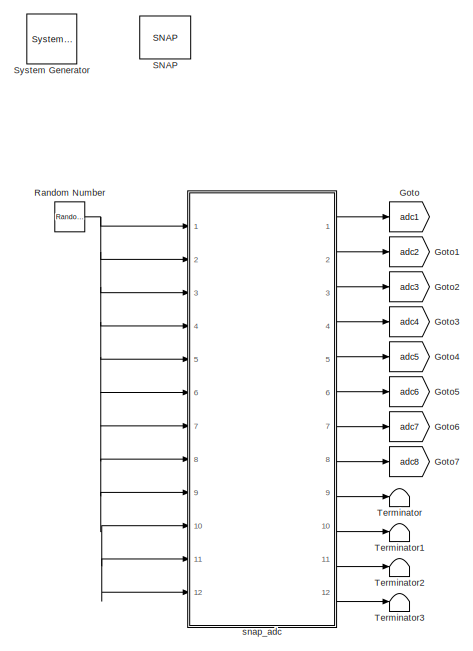
[diagram: root canvas - part 1/2, top left region]
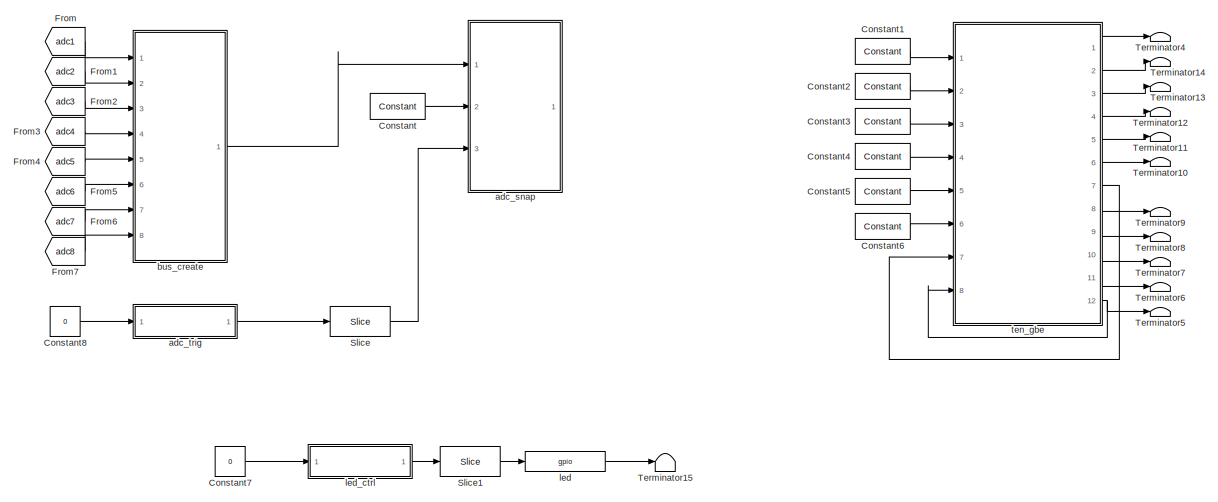
[diagram: root canvas - part 2/2, full width, bottom band]
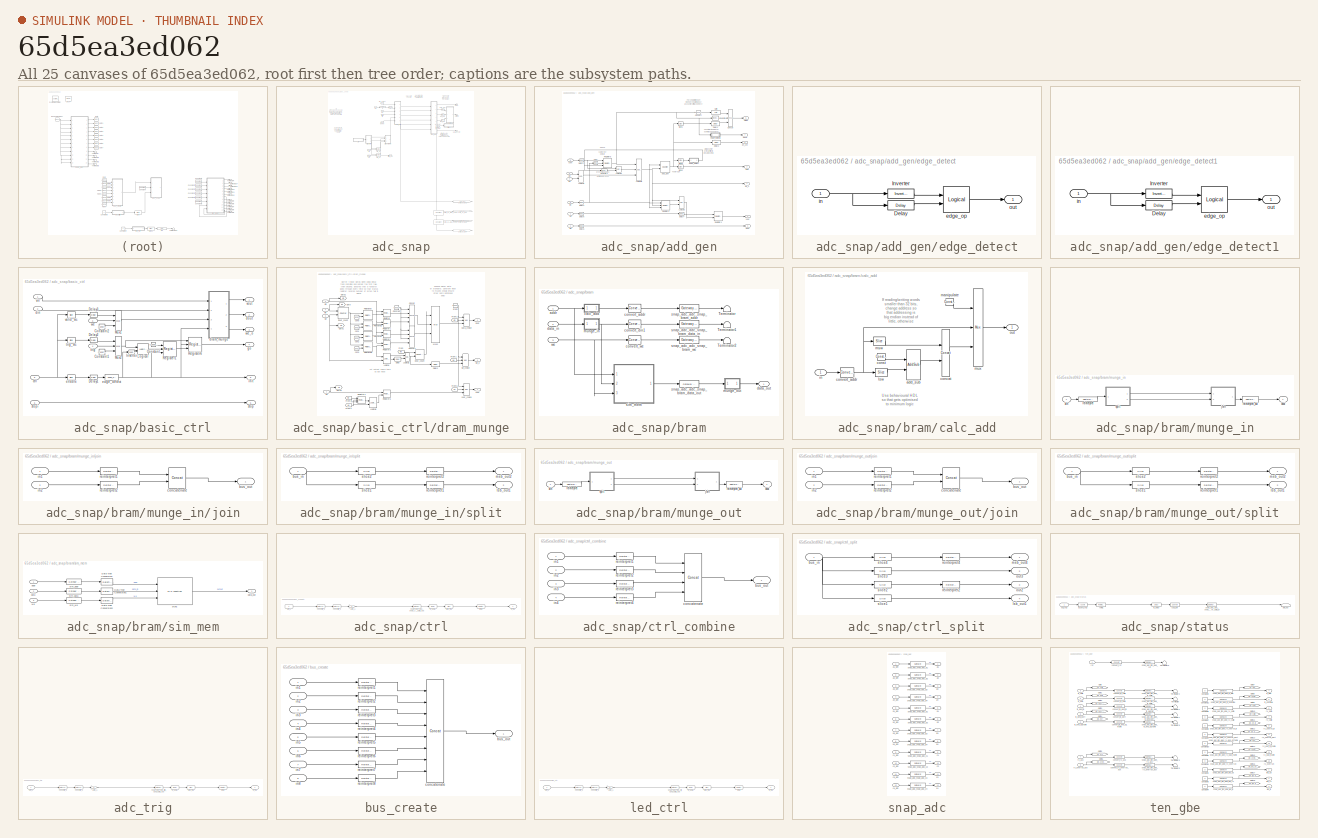
[diagram: thumbnail index - all 25 canvases of the model, root first then tree order]
MODEL slx_65d5ea3ed062
KIND model
CONFIG AbsTol = auto
CONFIG EnableMultiTasking = off
CONFIG FixedStep = auto
CONFIG MaxStep = auto
CONFIG MinStep = auto
CONFIG RelTol = 1e-3
CONFIG SampleTimeConstraint = Unconstrained
CONFIG SolverName = VariableStepDiscrete
CONFIG StartTime = 0.0
CONFIG StopTime = 10.0
BLOCK [Reference]  System Generator  REF=xbsIndex_r4/ System Generator
  AttributesFormatString = System\nGenerator
  Ports = []
  SourceBlock = xbsIndex_r4/ System Generator
  SourceType = Xilinx System Generator Block
  Tag = genX
  UserDataPersistent = on
BLOCK [Reference] Constant  REF=xbsIndex_r4/Constant
  Ports = [0, 1]
  SourceBlock = xbsIndex_r4/Constant
  SourceType = Xilinx Constant Block Block
BLOCK [Reference] Constant1  REF=xbsIndex_r4/Constant
  Ports = [0, 1]
  SourceBlock = xbsIndex_r4/Constant
  SourceType = Xilinx Constant Block Block
BLOCK [Reference] Constant2  REF=xbsIndex_r4/Constant
  Ports = [0, 1]
  SourceBlock = xbsIndex_r4/Constant
  SourceType = Xilinx Constant Block Block
BLOCK [Reference] Constant3  REF=xbsIndex_r4/Constant
  Ports = [0, 1]
  SourceBlock = xbsIndex_r4/Constant
  SourceType = Xilinx Constant Block Block
BLOCK [Reference] Constant4  REF=xbsIndex_r4/Constant
  Ports = [0, 1]
  SourceBlock = xbsIndex_r4/Constant
  SourceType = Xilinx Constant Block Block
BLOCK [Reference] Constant5  REF=xbsIndex_r4/Constant
  Ports = [0, 1]
  SourceBlock = xbsIndex_r4/Constant
  SourceType = Xilinx Constant Block Block
BLOCK [Reference] Constant6  REF=xbsIndex_r4/Constant
  Ports = [0, 1]
  SourceBlock = xbsIndex_r4/Constant
  SourceType = Xilinx Constant Block Block
BLOCK [Constant] Constant7
  SampleTime = -1
  Value = 0
BLOCK [Constant] Constant8
  SampleTime = -1
  Value = 0
BLOCK [From] From
  GotoTag = adc1
BLOCK [From] From1
  GotoTag = adc2
BLOCK [From] From2
  GotoTag = adc3
BLOCK [From] From3
  GotoTag = adc4
BLOCK [From] From4
  GotoTag = adc5
BLOCK [From] From5
  GotoTag = adc6
BLOCK [From] From6
  GotoTag = adc7
BLOCK [From] From7
  GotoTag = adc8
BLOCK [Goto] Goto
  GotoTag = adc1
BLOCK [Goto] Goto1
  GotoTag = adc2
BLOCK [Goto] Goto2
  GotoTag = adc3
BLOCK [Goto] Goto3
  GotoTag = adc4
BLOCK [Goto] Goto4
  GotoTag = adc5
BLOCK [Goto] Goto5
  GotoTag = adc6
BLOCK [Goto] Goto6
  GotoTag = adc7
BLOCK [Goto] Goto7
  GotoTag = adc8
BLOCK [RandomNumber] Random Number
  SampleTime = 0.1
BLOCK [Reference] SNAP  REF=xps_library/Platforms/SNAP  (lib defined in mdl_00b5cec29cd0, mdl_02ab6ecaa3d1, +5 more)
  Ports = []
  SourceBlock = xps_library/Platforms/SNAP
  SourceProductName = CASPER XPS Blockset
  SourceType = xsg core config
  Tag = xps:xsg
BLOCK [Reference] Slice  REF=xbsIndex_r4/Slice
  Ports = [1, 1]
  SourceBlock = xbsIndex_r4/Slice
  SourceType = Xilinx Bit Slice Extractor Block
BLOCK [Reference] Slice1  REF=xbsIndex_r4/Slice
  Ports = [1, 1]
  SourceBlock = xbsIndex_r4/Slice
  SourceType = Xilinx Bit Slice Extractor Block
BLOCK [Terminator] Terminator
BLOCK [Terminator] Terminator1
BLOCK [Terminator] Terminator10
BLOCK [Terminator] Terminator11
BLOCK [Terminator] Terminator12
BLOCK [Terminator] Terminator13
BLOCK [Terminator] Terminator14
BLOCK [Terminator] Terminator15
BLOCK [Terminator] Terminator2
BLOCK [Terminator] Terminator3
BLOCK [Terminator] Terminator4
BLOCK [Terminator] Terminator5
BLOCK [Terminator] Terminator6
BLOCK [Terminator] Terminator7
BLOCK [Terminator] Terminator8
BLOCK [Terminator] Terminator9
BLOCK [SubSystem] adc_snap
  AncestorBlock = casper_library_scopes/snapshot
  AttributesFormatString = 64 wide, 1024 deep\ndebugID: 20520027
  Ports = [3, 1]
  RequestExecContextInheritance = off
  Tag = casper:snapshot
  UserDataPersistent = on
BLOCK [Reference] adc_snap/add_del  REF=xbsIndex_r4/Delay
  Ports = [1, 1]
  SourceBlock = xbsIndex_r4/Delay
  SourceType = Xilinx Delay Block
BLOCK [SubSystem] adc_snap/add_gen
  AncestorBlock = casper_library_scopes/snapshot/add_gen
  Ports = [6, 7]
  RequestExecContextInheritance = off
BLOCK [Reference] adc_snap/add_gen/Concat  REF=xbsIndex_r4/Concat
  Ports = [3, 1]
  SourceBlock = xbsIndex_r4/Concat
  SourceType = Xilinx Bus Concatenator Block
BLOCK [Reference] adc_snap/add_gen/Convert  REF=xbsIndex_r4/Convert
  Ports = [1, 1]
  SourceBlock = xbsIndex_r4/Convert
  SourceType = Xilinx Type Converter Block
BLOCK [Reference] adc_snap/add_gen/Delay  REF=xbsIndex_r4/Delay
  Ports = [1, 1]
  SourceBlock = xbsIndex_r4/Delay
  SourceType = Xilinx Delay Block
BLOCK [Reference] adc_snap/add_gen/Delay1  REF=xbsIndex_r4/Delay
  Ports = [1, 1]
  SourceBlock = xbsIndex_r4/Delay
  SourceType = Xilinx Delay Block
BLOCK [Reference] adc_snap/add_gen/Delay2  REF=xbsIndex_r4/Delay
  Ports = [1, 1]
  SourceBlock = xbsIndex_r4/Delay
  SourceType = Xilinx Delay Block
BLOCK [Reference] adc_snap/add_gen/Delay3  REF=xbsIndex_r4/Delay
  Ports = [1, 1]
  SourceBlock = xbsIndex_r4/Delay
  SourceType = Xilinx Delay Block
BLOCK [Reference] adc_snap/add_gen/Delay4  REF=xbsIndex_r4/Delay
  Ports = [1, 1]
  SourceBlock = xbsIndex_r4/Delay
  SourceType = Xilinx Delay Block
BLOCK [Reference] adc_snap/add_gen/Delay5  REF=xbsIndex_r4/Delay
  Ports = [1, 1]
  SourceBlock = xbsIndex_r4/Delay
  SourceType = Xilinx Delay Block
BLOCK [Reference] adc_snap/add_gen/Delay6  REF=xbsIndex_r4/Delay
  Ports = [1, 1]
  SourceBlock = xbsIndex_r4/Delay
  SourceType = Xilinx Delay Block
BLOCK [Reference] adc_snap/add_gen/Delay7  REF=xbsIndex_r4/Delay
  Ports = [1, 1]
  SourceBlock = xbsIndex_r4/Delay
  SourceType = Xilinx Delay Block
BLOCK [Reference] adc_snap/add_gen/Inverter  REF=xbsIndex_r4/Inverter
  Ports = [1, 1]
  SourceBlock = xbsIndex_r4/Inverter
  SourceType = Xilinx Inverter Block
BLOCK [Reference] adc_snap/add_gen/Inverter1  REF=xbsIndex_r4/Inverter
  Ports = [1, 1]
  SourceBlock = xbsIndex_r4/Inverter
  SourceType = Xilinx Inverter Block
BLOCK [Reference] adc_snap/add_gen/Logical1  REF=xbsIndex_r4/Logical
  Ports = [2, 1]
  SourceBlock = xbsIndex_r4/Logical
  SourceType = Xilinx Logical Block Block
BLOCK [Reference] adc_snap/add_gen/Logical2  REF=xbsIndex_r4/Logical
  Ports = [2, 1]
  SourceBlock = xbsIndex_r4/Logical
  SourceType = Xilinx Logical Block Block
BLOCK [Reference] adc_snap/add_gen/Logical4  REF=xbsIndex_r4/Logical
  Ports = [2, 1]
  SourceBlock = xbsIndex_r4/Logical
  SourceType = Xilinx Logical Block Block
BLOCK [Reference] adc_snap/add_gen/Logical6  REF=xbsIndex_r4/Logical
  Ports = [3, 1]
  SourceBlock = xbsIndex_r4/Logical
  SourceType = Xilinx Logical Block Block
BLOCK [Reference] adc_snap/add_gen/Register3  REF=xbsIndex_r4/Register
  Ports = [3, 1]
  SourceBlock = xbsIndex_r4/Register
  SourceType = Xilinx Register Block
BLOCK [Reference] adc_snap/add_gen/Register4  REF=xbsIndex_r4/Register
  Ports = [2, 1]
  SourceBlock = xbsIndex_r4/Register
  SourceType = Xilinx Register Block
BLOCK [Reference] adc_snap/add_gen/Register5  REF=xbsIndex_r4/Register
  Ports = [3, 1]
  SourceBlock = xbsIndex_r4/Register
  SourceType = Xilinx Register Block
BLOCK [Reference] adc_snap/add_gen/Shift  REF=xbsIndex_r4/Shift
  Ports = [1, 1]
  SourceBlock = xbsIndex_r4/Shift
  SourceType = Xilinx Binary Shift Operator Block
BLOCK [Outport] adc_snap/add_gen/add
  Port = 2
  VectorParamsAs1DForOutWhenUnconnected = off
BLOCK [Reference] adc_snap/add_gen/add_gen  REF=xbsIndex_r4/Counter
  Ports = [2, 1]
  SourceBlock = xbsIndex_r4/Counter
  SourceType = Xilinx Counter Block
BLOCK [Inport] adc_snap/add_gen/cont
  Port = 5
BLOCK [Inport] adc_snap/add_gen/din
  Port = 2
BLOCK [Outport] adc_snap/add_gen/done
  Port = 7
  VectorParamsAs1DForOutWhenUnconnected = off
BLOCK [Outport] adc_snap/add_gen/dout
  Port = 3
  VectorParamsAs1DForOutWhenUnconnected = off
BLOCK [SubSystem] adc_snap/add_gen/edge_detect
  AncestorBlock = casper_library_misc/edge_detect
  AttributesFormatString = both edges\nactive high
  Ports = [1, 1]
  RequestExecContextInheritance = off
  UserDataPersistent = on
BLOCK [Reference] adc_snap/add_gen/edge_detect/Delay  REF=xbsIndex_r4/Delay
  Ports = [1, 1]
  SourceBlock = xbsIndex_r4/Delay
  SourceType = Xilinx Delay Block
BLOCK [Reference] adc_snap/add_gen/edge_detect/Inverter  REF=xbsIndex_r4/Inverter
  Ports = [1, 1]
  SourceBlock = xbsIndex_r4/Inverter
  SourceType = Xilinx Inverter Block
BLOCK [Reference] adc_snap/add_gen/edge_detect/edge_op  REF=xbsIndex_r4/Logical
  Ports = [2, 1]
  SourceBlock = xbsIndex_r4/Logical
  SourceType = Xilinx Logical Block Block
BLOCK [Inport] adc_snap/add_gen/edge_detect/in
BLOCK [Outport] adc_snap/add_gen/edge_detect/out
  VectorParamsAs1DForOutWhenUnconnected = off
BLOCK [SubSystem] adc_snap/add_gen/edge_detect1
  AncestorBlock = casper_library_scopes/snapshot/add_gen/edge_detect
  AttributesFormatString = both edges\nactive high
  Ports = [1, 1]
  RequestExecContextInheritance = off
  UserDataPersistent = on
BLOCK [Reference] adc_snap/add_gen/edge_detect1/Delay  REF=xbsIndex_r4/Delay
  Ports = [1, 1]
  SourceBlock = xbsIndex_r4/Delay
  SourceType = Xilinx Delay Block
BLOCK [Reference] adc_snap/add_gen/edge_detect1/Inverter  REF=xbsIndex_r4/Inverter
  Ports = [1, 1]
  SourceBlock = xbsIndex_r4/Inverter
  SourceType = Xilinx Inverter Block
BLOCK [Reference] adc_snap/add_gen/edge_detect1/edge_op  REF=xbsIndex_r4/Logical
  Ports = [2, 1]
  SourceBlock = xbsIndex_r4/Logical
  SourceType = Xilinx Logical Block Block
BLOCK [Inport] adc_snap/add_gen/edge_detect1/in
BLOCK [Outport] adc_snap/add_gen/edge_detect1/out
  VectorParamsAs1DForOutWhenUnconnected = off
BLOCK [Outport] adc_snap/add_gen/en_cnt
  Port = 6
  VectorParamsAs1DForOutWhenUnconnected = off
BLOCK [Inport] adc_snap/add_gen/go
  Port = 4
BLOCK [Inport] adc_snap/add_gen/init
  Port = 6
BLOCK [Reference] adc_snap/add_gen/slice1  REF=xbsIndex_r4/Slice
  Ports = [1, 1]
  SourceBlock = xbsIndex_r4/Slice
  SourceType = Xilinx Bit Slice Extractor Block
BLOCK [Reference] adc_snap/add_gen/slice2  REF=xbsIndex_r4/Slice
  Ports = [1, 1]
  SourceBlock = xbsIndex_r4/Slice
  SourceType = Xilinx Bit Slice Extractor Block
BLOCK [Reference] adc_snap/add_gen/slice3  REF=xbsIndex_r4/Slice
  Ports = [1, 1]
  SourceBlock = xbsIndex_r4/Slice
  SourceType = Xilinx Bit Slice Extractor Block
BLOCK [Outport] adc_snap/add_gen/status
  Port = 5
  VectorParamsAs1DForOutWhenUnconnected = off
BLOCK [Inport] adc_snap/add_gen/vin
BLOCK [Outport] adc_snap/add_gen/vout
  VectorParamsAs1DForOutWhenUnconnected = off
BLOCK [Inport] adc_snap/add_gen/we
  Port = 3
BLOCK [Outport] adc_snap/add_gen/we_o
  Port = 4
  VectorParamsAs1DForOutWhenUnconnected = off
BLOCK [Reference] adc_snap/arm  REF=xbsIndex_r4/Constant
  Ports = [0, 1]
  SourceBlock = xbsIndex_r4/Constant
  SourceType = Xilinx Constant Block Block
BLOCK [Reference] adc_snap/arm_or  REF=xbsIndex_r4/Logical
  Ports = [2, 1]
  SourceBlock = xbsIndex_r4/Logical
  SourceType = Xilinx Logical Block Block
BLOCK [Outport] adc_snap/arm_out
  VectorParamsAs1DForOutWhenUnconnected = off
BLOCK [SubSystem] adc_snap/basic_ctrl
  AncestorBlock = casper_library_scopes/snapshot/basic_ctrl
  Ports = [6, 6]
  RequestExecContextInheritance = off
BLOCK [Reference] adc_snap/basic_ctrl/Constant  REF=xbsIndex_r4/Constant
  Ports = [0, 1]
  SourceBlock = xbsIndex_r4/Constant
  SourceType = Xilinx Constant Block Block
BLOCK [Reference] adc_snap/basic_ctrl/Constant1  REF=xbsIndex_r4/Constant
  Ports = [0, 1]
  SourceBlock = xbsIndex_r4/Constant
  SourceType = Xilinx Constant Block Block
BLOCK [Reference] adc_snap/basic_ctrl/Constant2  REF=xbsIndex_r4/Constant
  Ports = [0, 1]
  SourceBlock = xbsIndex_r4/Constant
  SourceType = Xilinx Constant Block Block
BLOCK [Reference] adc_snap/basic_ctrl/Delay1  REF=xbsIndex_r4/Delay
  Ports = [1, 1]
  SourceBlock = xbsIndex_r4/Delay
  SourceType = Xilinx Delay Block
BLOCK [Reference] adc_snap/basic_ctrl/Delay2  REF=xbsIndex_r4/Delay
  Ports = [1, 1]
  SourceBlock = xbsIndex_r4/Delay
  SourceType = Xilinx Delay Block
BLOCK [Reference] adc_snap/basic_ctrl/Delay3  REF=xbsIndex_r4/Delay
  Ports = [1, 1]
  SourceBlock = xbsIndex_r4/Delay
  SourceType = Xilinx Delay Block
BLOCK [Reference] adc_snap/basic_ctrl/Inverter  REF=xbsIndex_r4/Inverter
  Ports = [1, 1]
  SourceBlock = xbsIndex_r4/Inverter
  SourceType = Xilinx Inverter Block
BLOCK [Reference] adc_snap/basic_ctrl/Logical  REF=xbsIndex_r4/Logical
  Ports = [2, 1]
  SourceBlock = xbsIndex_r4/Logical
  SourceType = Xilinx Logical Block Block
BLOCK [Reference] adc_snap/basic_ctrl/Mux1  REF=xbsIndex_r4/Mux
  Ports = [3, 1]
  SourceBlock = xbsIndex_r4/Mux
  SourceType = Xilinx Bus Multiplexer Block
BLOCK [Reference] adc_snap/basic_ctrl/Mux2  REF=xbsIndex_r4/Mux
  Ports = [3, 1]
  SourceBlock = xbsIndex_r4/Mux
  SourceType = Xilinx Bus Multiplexer Block
BLOCK [Reference] adc_snap/basic_ctrl/Register1  REF=xbsIndex_r4/Register
  Ports = [3, 1]
  SourceBlock = xbsIndex_r4/Register
  SourceType = Xilinx Register Block
BLOCK [Reference] adc_snap/basic_ctrl/Register6  REF=xbsIndex_r4/Register
  Ports = [3, 1]
  SourceBlock = xbsIndex_r4/Register
  SourceType = Xilinx Register Block
BLOCK [Inport] adc_snap/basic_ctrl/ctrl
  Port = 5
BLOCK [Inport] adc_snap/basic_ctrl/din
  Port = 2
BLOCK [Outport] adc_snap/basic_ctrl/dout
  Port = 2
  VectorParamsAs1DForOutWhenUnconnected = off
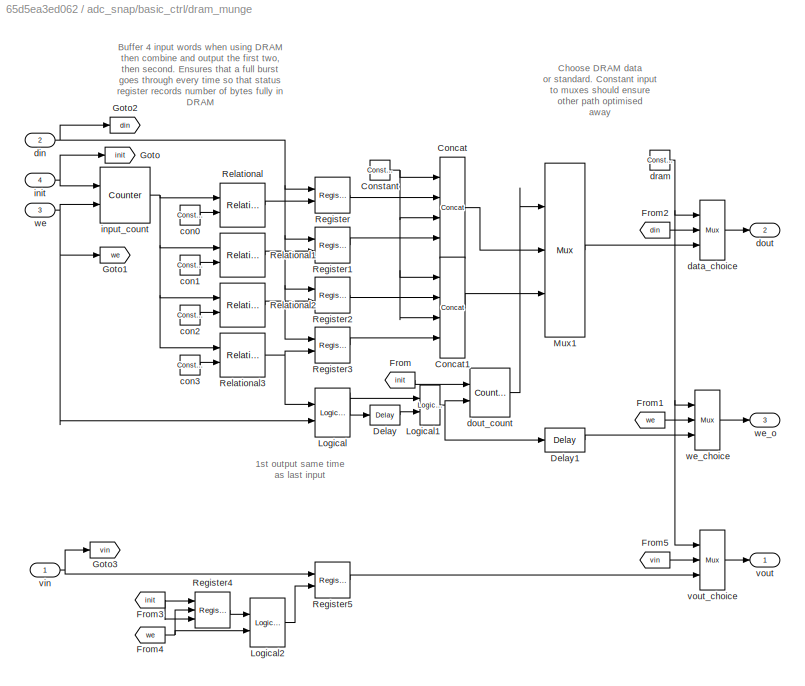
BLOCK [SubSystem] adc_snap/basic_ctrl/dram_munge
  Ports = [4, 3]
  RequestExecContextInheritance = off
BLOCK [Reference] adc_snap/basic_ctrl/dram_munge/Concat  REF=xbsIndex_r4/Concat
  Ports = [4, 1]
  SourceBlock = xbsIndex_r4/Concat
  SourceType = Xilinx Bus Concatenator Block
BLOCK [Reference] adc_snap/basic_ctrl/dram_munge/Concat1  REF=xbsIndex_r4/Concat
  Ports = [4, 1]
  SourceBlock = xbsIndex_r4/Concat
  SourceType = Xilinx Bus Concatenator Block
BLOCK [Reference] adc_snap/basic_ctrl/dram_munge/Constant  REF=xbsIndex_r4/Constant
  Ports = [0, 1]
  SourceBlock = xbsIndex_r4/Constant
  SourceType = Xilinx Constant Block Block
BLOCK [Reference] adc_snap/basic_ctrl/dram_munge/Delay  REF=xbsIndex_r4/Delay
  Ports = [1, 1]
  SourceBlock = xbsIndex_r4/Delay
  SourceType = Xilinx Delay Block
BLOCK [Reference] adc_snap/basic_ctrl/dram_munge/Delay1  REF=xbsIndex_r4/Delay
  Ports = [1, 1]
  SourceBlock = xbsIndex_r4/Delay
  SourceType = Xilinx Delay Block
BLOCK [From] adc_snap/basic_ctrl/dram_munge/From
  CloseFcn = tagdialog Close
  GotoTag = init
BLOCK [From] adc_snap/basic_ctrl/dram_munge/From1
  CloseFcn = tagdialog Close
  GotoTag = we
BLOCK [From] adc_snap/basic_ctrl/dram_munge/From2
  CloseFcn = tagdialog Close
  GotoTag = din
BLOCK [From] adc_snap/basic_ctrl/dram_munge/From3
  CloseFcn = tagdialog Close
  GotoTag = init
BLOCK [From] adc_snap/basic_ctrl/dram_munge/From4
  CloseFcn = tagdialog Close
  GotoTag = we
BLOCK [From] adc_snap/basic_ctrl/dram_munge/From5
  CloseFcn = tagdialog Close
  GotoTag = vin
BLOCK [Goto] adc_snap/basic_ctrl/dram_munge/Goto
  GotoTag = init
BLOCK [Goto] adc_snap/basic_ctrl/dram_munge/Goto1
  GotoTag = we
BLOCK [Goto] adc_snap/basic_ctrl/dram_munge/Goto2
  GotoTag = din
BLOCK [Goto] adc_snap/basic_ctrl/dram_munge/Goto3
  GotoTag = vin
BLOCK [Reference] adc_snap/basic_ctrl/dram_munge/Logical  REF=xbsIndex_r4/Logical
  Ports = [2, 1]
  SourceBlock = xbsIndex_r4/Logical
  SourceType = Xilinx Logical Block Block
BLOCK [Reference] adc_snap/basic_ctrl/dram_munge/Logical1  REF=xbsIndex_r4/Logical
  Ports = [2, 1]
  SourceBlock = xbsIndex_r4/Logical
  SourceType = Xilinx Logical Block Block
BLOCK [Reference] adc_snap/basic_ctrl/dram_munge/Logical2  REF=xbsIndex_r4/Logical
  Ports = [2, 1]
  SourceBlock = xbsIndex_r4/Logical
  SourceType = Xilinx Logical Block Block
BLOCK [Reference] adc_snap/basic_ctrl/dram_munge/Mux1  REF=xbsIndex_r4/Mux
  Ports = [3, 1]
  SourceBlock = xbsIndex_r4/Mux
  SourceType = Xilinx Bus Multiplexer Block
BLOCK [Reference] adc_snap/basic_ctrl/dram_munge/Register  REF=xbsIndex_r4/Register
  Ports = [2, 1]
  SourceBlock = xbsIndex_r4/Register
  SourceType = Xilinx Register Block
BLOCK [Reference] adc_snap/basic_ctrl/dram_munge/Register1  REF=xbsIndex_r4/Register
  Ports = [2, 1]
  SourceBlock = xbsIndex_r4/Register
  SourceType = Xilinx Register Block
BLOCK [Reference] adc_snap/basic_ctrl/dram_munge/Register2  REF=xbsIndex_r4/Register
  Ports = [2, 1]
  SourceBlock = xbsIndex_r4/Register
  SourceType = Xilinx Register Block
BLOCK [Reference] adc_snap/basic_ctrl/dram_munge/Register3  REF=xbsIndex_r4/Register
  Ports = [2, 1]
  SourceBlock = xbsIndex_r4/Register
  SourceType = Xilinx Register Block
BLOCK [Reference] adc_snap/basic_ctrl/dram_munge/Register4  REF=xbsIndex_r4/Register
  Ports = [3, 1]
  SourceBlock = xbsIndex_r4/Register
  SourceType = Xilinx Register Block
BLOCK [Reference] adc_snap/basic_ctrl/dram_munge/Register5  REF=xbsIndex_r4/Register
  Ports = [2, 1]
  SourceBlock = xbsIndex_r4/Register
  SourceType = Xilinx Register Block
BLOCK [Reference] adc_snap/basic_ctrl/dram_munge/Relational  REF=xbsIndex_r4/Relational
  Ports = [2, 1]
  SourceBlock = xbsIndex_r4/Relational
  SourceType = Xilinx Arithmetic Relational Operator Block
BLOCK [Reference] adc_snap/basic_ctrl/dram_munge/Relational1  REF=xbsIndex_r4/Relational
  Ports = [2, 1]
  SourceBlock = xbsIndex_r4/Relational
  SourceType = Xilinx Arithmetic Relational Operator Block
BLOCK [Reference] adc_snap/basic_ctrl/dram_munge/Relational2  REF=xbsIndex_r4/Relational
  Ports = [2, 1]
  SourceBlock = xbsIndex_r4/Relational
  SourceType = Xilinx Arithmetic Relational Operator Block
BLOCK [Reference] adc_snap/basic_ctrl/dram_munge/Relational3  REF=xbsIndex_r4/Relational
  Ports = [2, 1]
  SourceBlock = xbsIndex_r4/Relational
  SourceType = Xilinx Arithmetic Relational Operator Block
BLOCK [Reference] adc_snap/basic_ctrl/dram_munge/con0  REF=xbsIndex_r4/Constant
  Ports = [0, 1]
  SourceBlock = xbsIndex_r4/Constant
  SourceType = Xilinx Constant Block Block
BLOCK [Reference] adc_snap/basic_ctrl/dram_munge/con1  REF=xbsIndex_r4/Constant
  Ports = [0, 1]
  SourceBlock = xbsIndex_r4/Constant
  SourceType = Xilinx Constant Block Block
BLOCK [Reference] adc_snap/basic_ctrl/dram_munge/con2  REF=xbsIndex_r4/Constant
  Ports = [0, 1]
  SourceBlock = xbsIndex_r4/Constant
  SourceType = Xilinx Constant Block Block
BLOCK [Reference] adc_snap/basic_ctrl/dram_munge/con3  REF=xbsIndex_r4/Constant
  Ports = [0, 1]
  SourceBlock = xbsIndex_r4/Constant
  SourceType = Xilinx Constant Block Block
BLOCK [Reference] adc_snap/basic_ctrl/dram_munge/data_choice  REF=xbsIndex_r4/Mux
  Ports = [3, 1]
  SourceBlock = xbsIndex_r4/Mux
  SourceType = Xilinx Bus Multiplexer Block
BLOCK [Inport] adc_snap/basic_ctrl/dram_munge/din
  Port = 2
BLOCK [Outport] adc_snap/basic_ctrl/dram_munge/dout
  Port = 2
  VectorParamsAs1DForOutWhenUnconnected = off
BLOCK [Reference] adc_snap/basic_ctrl/dram_munge/dout_count  REF=xbsIndex_r4/Counter
  Ports = [2, 1]
  SourceBlock = xbsIndex_r4/Counter
  SourceType = Xilinx Counter Block
BLOCK [Reference] adc_snap/basic_ctrl/dram_munge/dram  REF=xbsIndex_r4/Constant
  Ports = [0, 1]
  SourceBlock = xbsIndex_r4/Constant
  SourceType = Xilinx Constant Block Block
BLOCK [Inport] adc_snap/basic_ctrl/dram_munge/init
  Port = 4
BLOCK [Reference] adc_snap/basic_ctrl/dram_munge/input_count  REF=xbsIndex_r4/Counter
  Ports = [2, 1]
  SourceBlock = xbsIndex_r4/Counter
  SourceType = Xilinx Counter Block
BLOCK [Inport] adc_snap/basic_ctrl/dram_munge/vin
BLOCK [Outport] adc_snap/basic_ctrl/dram_munge/vout
  VectorParamsAs1DForOutWhenUnconnected = off
BLOCK [Reference] adc_snap/basic_ctrl/dram_munge/vout_choice  REF=xbsIndex_r4/Mux
  Ports = [3, 1]
  SourceBlock = xbsIndex_r4/Mux
  SourceType = Xilinx Bus Multiplexer Block
BLOCK [Inport] adc_snap/basic_ctrl/dram_munge/we
  Port = 3
BLOCK [Reference] adc_snap/basic_ctrl/dram_munge/we_choice  REF=xbsIndex_r4/Mux
  Ports = [3, 1]
  SourceBlock = xbsIndex_r4/Mux
  SourceType = Xilinx Bus Multiplexer Block
BLOCK [Outport] adc_snap/basic_ctrl/dram_munge/we_o
  Port = 3
  VectorParamsAs1DForOutWhenUnconnected = off
BLOCK [Reference] adc_snap/basic_ctrl/edge_detect  REF=casper_library_misc/edge_detect  (lib defined in mdl_357510c33b49, mdl_57b5f564ae26, +4 more)
  AttributesFormatString = rising edges\nactive high
  Ports = [1, 1]
  SourceBlock = casper_library_misc/edge_detect
  SourceProductName = CASPER DSP Blockset
  SourceType = edge_detect
  UserDataPersistent = on
BLOCK [Reference] adc_snap/basic_ctrl/enable  REF=xbsIndex_r4/Slice
  Ports = [1, 1]
  SourceBlock = xbsIndex_r4/Slice
  SourceType = Xilinx Bit Slice Extractor Block
BLOCK [Outport] adc_snap/basic_ctrl/go
  Port = 4
  VectorParamsAs1DForOutWhenUnconnected = off
BLOCK [Outport] adc_snap/basic_ctrl/init
  Port = 6
  VectorParamsAs1DForOutWhenUnconnected = off
BLOCK [Outport] adc_snap/basic_ctrl/stop
  Port = 5
  VectorParamsAs1DForOutWhenUnconnected = off
BLOCK [Inport] adc_snap/basic_ctrl/stopi
  Port = 6
BLOCK [Inport] adc_snap/basic_ctrl/trig
  Port = 4
BLOCK [Reference] adc_snap/basic_ctrl/trig_src  REF=xbsIndex_r4/Slice
  Ports = [1, 1]
  SourceBlock = xbsIndex_r4/Slice
  SourceType = Xilinx Bit Slice Extractor Block
BLOCK [Reference] adc_snap/basic_ctrl/valid_src  REF=xbsIndex_r4/Slice
  Ports = [1, 1]
  SourceBlock = xbsIndex_r4/Slice
  SourceType = Xilinx Bit Slice Extractor Block
BLOCK [Inport] adc_snap/basic_ctrl/vin
BLOCK [Outport] adc_snap/basic_ctrl/vout
  VectorParamsAs1DForOutWhenUnconnected = off
BLOCK [Inport] adc_snap/basic_ctrl/we
  Port = 3
BLOCK [Outport] adc_snap/basic_ctrl/we_o
  Port = 3
  VectorParamsAs1DForOutWhenUnconnected = off
BLOCK [SubSystem] adc_snap/bram
  AncestorBlock = xps_library/Memory/shared_bram
  Ports = [3, 1]
  RequestExecContextInheritance = off
  Tag = xps:bram
BLOCK [Terminator] adc_snap/bram/Terminator
BLOCK [Terminator] adc_snap/bram/Terminator1
BLOCK [Terminator] adc_snap/bram/Terminator2
BLOCK [Inport] adc_snap/bram/addr
BLOCK [SubSystem] adc_snap/bram/calc_add
  Ports = [1, 1]
  RequestExecContextInheritance = off
BLOCK [Reference] adc_snap/bram/calc_add/add_sub  REF=xbsIndex_r4/AddSub
  Ports = [2, 1]
  SourceBlock = xbsIndex_r4/AddSub
  SourceType = Xilinx Adder/Subtracter Block
BLOCK [Reference] adc_snap/bram/calc_add/concat  REF=xbsIndex_r4/Concat
  Ports = [2, 1]
  SourceBlock = xbsIndex_r4/Concat
  SourceType = Xilinx Bus Concatenator Block
BLOCK [Reference] adc_snap/bram/calc_add/const  REF=xbsIndex_r4/Constant
  Ports = [0, 1]
  SourceBlock = xbsIndex_r4/Constant
  SourceType = Xilinx Constant Block Block
BLOCK [Reference] adc_snap/bram/calc_add/convert_addr  REF=xbsIndex_r4/Convert
  Ports = [1, 1]
  SourceBlock = xbsIndex_r4/Convert
  SourceType = Xilinx Type Converter Block
BLOCK [Inport] adc_snap/bram/calc_add/in
BLOCK [Reference] adc_snap/bram/calc_add/lsw  REF=xbsIndex_r4/Slice
  Ports = [1, 1]
  SourceBlock = xbsIndex_r4/Slice
  SourceType = Xilinx Bit Slice Extractor Block
BLOCK [Reference] adc_snap/bram/calc_add/manipulate  REF=xbsIndex_r4/Constant
  Ports = [0, 1]
  SourceBlock = xbsIndex_r4/Constant
  SourceType = Xilinx Constant Block Block
BLOCK [Reference] adc_snap/bram/calc_add/msw  REF=xbsIndex_r4/Slice
  Ports = [1, 1]
  SourceBlock = xbsIndex_r4/Slice
  SourceType = Xilinx Bit Slice Extractor Block
BLOCK [Reference] adc_snap/bram/calc_add/mux  REF=xbsIndex_r4/Mux
  Ports = [3, 1]
  SourceBlock = xbsIndex_r4/Mux
  SourceType = Xilinx Bus Multiplexer Block
BLOCK [Outport] adc_snap/bram/calc_add/out
  VectorParamsAs1DForOutWhenUnconnected = off
BLOCK [Reference] adc_snap/bram/convert_addr  REF=xbsIndex_r4/Convert
  Ports = [1, 1]
  SourceBlock = xbsIndex_r4/Convert
  SourceType = Xilinx Type Converter Block
BLOCK [Reference] adc_snap/bram/convert_din1  REF=xbsIndex_r4/Convert
  Ports = [1, 1]
  SourceBlock = xbsIndex_r4/Convert
  SourceType = Xilinx Type Converter Block
BLOCK [Reference] adc_snap/bram/convert_we  REF=xbsIndex_r4/Convert
  Ports = [1, 1]
  SourceBlock = xbsIndex_r4/Convert
  SourceType = Xilinx Type Converter Block
BLOCK [Inport] adc_snap/bram/data_in
  Port = 2
BLOCK [Outport] adc_snap/bram/data_out
  VectorParamsAs1DForOutWhenUnconnected = off
BLOCK [SubSystem] adc_snap/bram/munge_in
  AncestorBlock = casper_library_flow_control/munge
  AttributesFormatString = split:[32 32]\njoin:[1 0]\nUnsigned [64,0]
  Ports = [1, 1]
  RequestExecContextInheritance = off
  UserDataPersistent = on
BLOCK [Inport] adc_snap/bram/munge_in/din
BLOCK [Outport] adc_snap/bram/munge_in/dout
  VectorParamsAs1DForOutWhenUnconnected = off
BLOCK [SubSystem] adc_snap/bram/munge_in/join
  AncestorBlock = casper_library_flow_control/bus_create
  Ports = [2, 1]
  RequestExecContextInheritance = off
  UserDataPersistent = on
BLOCK [Outport] adc_snap/bram/munge_in/join/bus_out
  VectorParamsAs1DForOutWhenUnconnected = off
BLOCK [Reference] adc_snap/bram/munge_in/join/concatenate  REF=xbsIndex_r4/Concat
  Ports = [2, 1]
  SourceBlock = xbsIndex_r4/Concat
  SourceType = Xilinx Bus Concatenator Block
BLOCK [Inport] adc_snap/bram/munge_in/join/in1
BLOCK [Inport] adc_snap/bram/munge_in/join/in2
  Port = 2
BLOCK [Reference] adc_snap/bram/munge_in/join/reinterpret1  REF=xbsIndex_r4/Reinterpret
  Ports = [1, 1]
  SourceBlock = xbsIndex_r4/Reinterpret
  SourceType = Xilinx Type Reinterpreter Block
BLOCK [Reference] adc_snap/bram/munge_in/join/reinterpret2  REF=xbsIndex_r4/Reinterpret
  Ports = [1, 1]
  SourceBlock = xbsIndex_r4/Reinterpret
  SourceType = Xilinx Type Reinterpreter Block
BLOCK [Reference] adc_snap/bram/munge_in/reinterpret  REF=xbsIndex_r4/Reinterpret
  Ports = [1, 1]
  SourceBlock = xbsIndex_r4/Reinterpret
  SourceType = Xilinx Type Reinterpreter Block
BLOCK [Reference] adc_snap/bram/munge_in/reinterpret_out  REF=xbsIndex_r4/Reinterpret
  Ports = [1, 1]
  SourceBlock = xbsIndex_r4/Reinterpret
  SourceType = Xilinx Type Reinterpreter Block
BLOCK [SubSystem] adc_snap/bram/munge_in/split
  AncestorBlock = casper_library_flow_control/bus_expand
  AttributesFormatString = 2 outputs
  Ports = [1, 2]
  RequestExecContextInheritance = off
  UserDataPersistent = on
BLOCK [Inport] adc_snap/bram/munge_in/split/bus_in
BLOCK [Outport] adc_snap/bram/munge_in/split/lsb_out1
  Port = 2
  VectorParamsAs1DForOutWhenUnconnected = off
BLOCK [Outport] adc_snap/bram/munge_in/split/msb_out2
  VectorParamsAs1DForOutWhenUnconnected = off
BLOCK [Reference] adc_snap/bram/munge_in/split/reinterpret1  REF=xbsIndex_r4/Reinterpret
  Ports = [1, 1]
  SourceBlock = xbsIndex_r4/Reinterpret
  SourceType = Xilinx Type Reinterpreter Block
BLOCK [Reference] adc_snap/bram/munge_in/split/reinterpret2  REF=xbsIndex_r4/Reinterpret
  Ports = [1, 1]
  SourceBlock = xbsIndex_r4/Reinterpret
  SourceType = Xilinx Type Reinterpreter Block
BLOCK [Reference] adc_snap/bram/munge_in/split/slice1  REF=xbsIndex_r4/Slice
  Ports = [1, 1]
  SourceBlock = xbsIndex_r4/Slice
  SourceType = Xilinx Bit Slice Extractor Block
BLOCK [Reference] adc_snap/bram/munge_in/split/slice2  REF=xbsIndex_r4/Slice
  Ports = [1, 1]
  SourceBlock = xbsIndex_r4/Slice
  SourceType = Xilinx Bit Slice Extractor Block
BLOCK [SubSystem] adc_snap/bram/munge_out
  AncestorBlock = casper_library_flow_control/munge
  AttributesFormatString = split:[32 32]\njoin:[1 0]\nUnsigned [64,0]
  Ports = [1, 1]
  RequestExecContextInheritance = off
  UserDataPersistent = on
BLOCK [Inport] adc_snap/bram/munge_out/din
BLOCK [Outport] adc_snap/bram/munge_out/dout
  VectorParamsAs1DForOutWhenUnconnected = off
BLOCK [SubSystem] adc_snap/bram/munge_out/join
  AncestorBlock = casper_library_flow_control/bus_create
  Ports = [2, 1]
  RequestExecContextInheritance = off
  UserDataPersistent = on
BLOCK [Outport] adc_snap/bram/munge_out/join/bus_out
  VectorParamsAs1DForOutWhenUnconnected = off
BLOCK [Reference] adc_snap/bram/munge_out/join/concatenate  REF=xbsIndex_r4/Concat
  Ports = [2, 1]
  SourceBlock = xbsIndex_r4/Concat
  SourceType = Xilinx Bus Concatenator Block
BLOCK [Inport] adc_snap/bram/munge_out/join/in1
BLOCK [Inport] adc_snap/bram/munge_out/join/in2
  Port = 2
BLOCK [Reference] adc_snap/bram/munge_out/join/reinterpret1  REF=xbsIndex_r4/Reinterpret
  Ports = [1, 1]
  SourceBlock = xbsIndex_r4/Reinterpret
  SourceType = Xilinx Type Reinterpreter Block
BLOCK [Reference] adc_snap/bram/munge_out/join/reinterpret2  REF=xbsIndex_r4/Reinterpret
  Ports = [1, 1]
  SourceBlock = xbsIndex_r4/Reinterpret
  SourceType = Xilinx Type Reinterpreter Block
BLOCK [Reference] adc_snap/bram/munge_out/reinterpret  REF=xbsIndex_r4/Reinterpret
  Ports = [1, 1]
  SourceBlock = xbsIndex_r4/Reinterpret
  SourceType = Xilinx Type Reinterpreter Block
BLOCK [Reference] adc_snap/bram/munge_out/reinterpret_out  REF=xbsIndex_r4/Reinterpret
  Ports = [1, 1]
  SourceBlock = xbsIndex_r4/Reinterpret
  SourceType = Xilinx Type Reinterpreter Block
BLOCK [SubSystem] adc_snap/bram/munge_out/split
  AncestorBlock = casper_library_flow_control/bus_expand
  AttributesFormatString = 2 outputs
  Ports = [1, 2]
  RequestExecContextInheritance = off
  UserDataPersistent = on
BLOCK [Inport] adc_snap/bram/munge_out/split/bus_in
BLOCK [Outport] adc_snap/bram/munge_out/split/lsb_out1
  Port = 2
  VectorParamsAs1DForOutWhenUnconnected = off
BLOCK [Outport] adc_snap/bram/munge_out/split/msb_out2
  VectorParamsAs1DForOutWhenUnconnected = off
BLOCK [Reference] adc_snap/bram/munge_out/split/reinterpret1  REF=xbsIndex_r4/Reinterpret
  Ports = [1, 1]
  SourceBlock = xbsIndex_r4/Reinterpret
  SourceType = Xilinx Type Reinterpreter Block
BLOCK [Reference] adc_snap/bram/munge_out/split/reinterpret2  REF=xbsIndex_r4/Reinterpret
  Ports = [1, 1]
  SourceBlock = xbsIndex_r4/Reinterpret
  SourceType = Xilinx Type Reinterpreter Block
BLOCK [Reference] adc_snap/bram/munge_out/split/slice1  REF=xbsIndex_r4/Slice
  Ports = [1, 1]
  SourceBlock = xbsIndex_r4/Slice
  SourceType = Xilinx Bit Slice Extractor Block
BLOCK [Reference] adc_snap/bram/munge_out/split/slice2  REF=xbsIndex_r4/Slice
  Ports = [1, 1]
  SourceBlock = xbsIndex_r4/Slice
  SourceType = Xilinx Bit Slice Extractor Block
BLOCK [SubSystem] adc_snap/bram/sim_mem
  Ports = [3, 1]
  RequestExecContextInheritance = off
BLOCK [DataTypeConversion] adc_snap/bram/sim_mem/Data Type Conversion
  OutDataTypeStr = single
  RndMeth = Floor
  SaturateOnIntegerOverflow = off
BLOCK [DataTypeConversion] adc_snap/bram/sim_mem/Data Type Conversion1
  OutDataTypeStr = double
  RndMeth = Floor
  SaturateOnIntegerOverflow = off
BLOCK [DataTypeConversion] adc_snap/bram/sim_mem/Data Type Conversion2
  OutDataTypeStr = boolean
  RndMeth = Floor
  SaturateOnIntegerOverflow = off
BLOCK [Inport] adc_snap/bram/sim_mem/addr
BLOCK [Inport] adc_snap/bram/sim_mem/data
  Port = 2
BLOCK [Outport] adc_snap/bram/sim_mem/data_out
  VectorParamsAs1DForOutWhenUnconnected = off
BLOCK [M-S-Function] adc_snap/bram/sim_mem/sfunc
  FunctionName = shared_bram_sim_sfunc
  Parameters = depth_bits, latency, init_vals
  Ports = [3, 1]
BLOCK [Reference] adc_snap/bram/sim_mem/sim_addr  REF=xbsIndex_r4/Gateway Out
  Ports = [1, 1]
  SourceBlock = xbsIndex_r4/Gateway Out
  SourceType = Xilinx Gateway Out Block
BLOCK [Reference] adc_snap/bram/sim_mem/sim_data  REF=xbsIndex_r4/Gateway Out
  Ports = [1, 1]
  SourceBlock = xbsIndex_r4/Gateway Out
  SourceType = Xilinx Gateway Out Block
BLOCK [Reference] adc_snap/bram/sim_mem/sim_we  REF=xbsIndex_r4/Gateway Out
  Ports = [1, 1]
  SourceBlock = xbsIndex_r4/Gateway Out
  SourceType = Xilinx Gateway Out Block
BLOCK [Inport] adc_snap/bram/sim_mem/we
  Port = 3
BLOCK [Reference] adc_snap/bram/snap_adc_adc_snap_bram_addr  REF=xbsIndex_r4/Gateway Out
  Ports = [1, 1]
  SourceBlock = xbsIndex_r4/Gateway Out
  SourceType = Xilinx Gateway Out Block
BLOCK [Reference] adc_snap/bram/snap_adc_adc_snap_bram_data_in  REF=xbsIndex_r4/Gateway Out
  Ports = [1, 1]
  SourceBlock = xbsIndex_r4/Gateway Out
  SourceType = Xilinx Gateway Out Block
BLOCK [Reference] adc_snap/bram/snap_adc_adc_snap_bram_data_out  REF=xbsIndex_r4/Gateway In
  Ports = [1, 1]
  SourceBlock = xbsIndex_r4/Gateway In
  SourceType = Xilinx Gateway In Block
BLOCK [Reference] adc_snap/bram/snap_adc_adc_snap_bram_we  REF=xbsIndex_r4/Gateway Out
  Ports = [1, 1]
  SourceBlock = xbsIndex_r4/Gateway Out
  SourceType = Xilinx Gateway Out Block
BLOCK [Inport] adc_snap/bram/we
  Port = 3
BLOCK [Reference] adc_snap/cast  REF=xbsIndex_r4/Convert
  Ports = [1, 1]
  SourceBlock = xbsIndex_r4/Convert
  SourceType = Xilinx Type Converter Block
BLOCK [Reference] adc_snap/circ  REF=xbsIndex_r4/Constant
  Ports = [0, 1]
  SourceBlock = xbsIndex_r4/Constant
  SourceType = Xilinx Constant Block Block
BLOCK [Reference] adc_snap/circ_or  REF=xbsIndex_r4/Logical
  Ports = [2, 1]
  SourceBlock = xbsIndex_r4/Logical
  SourceType = Xilinx Logical Block Block
BLOCK [SubSystem] adc_snap/ctrl
  AncestorBlock = xps_library/Memory/software_register
  AttributesFormatString = 1input:uf32.0 = 32 bits
  Ports = [0, 1]
  RequestExecContextInheritance = off
  Tag = xps:sw_reg
BLOCK [DataTypeConversion] adc_snap/ctrl/convert1_1
  LockScale = on
  OutDataTypeStr = fixdt('ufix32_En0')
  RndMeth = Floor
  SaturateOnIntegerOverflow = off
BLOCK [DataTypeConversion] adc_snap/ctrl/convert2_1
  ConvertRealWorld = Stored Integer (SI)
  LockScale = on
  OutDataTypeStr = fixdt('ufix32_En0')
  RndMeth = Floor
  SaturateOnIntegerOverflow = off
BLOCK [Gain] adc_snap/ctrl/gain_1
  OutDataTypeStr = fixdt('ufix32_En0')
BLOCK [Outport] adc_snap/ctrl/in_reg
BLOCK [Reference] adc_snap/ctrl/io_delay  REF=xbsIndex_r4/Delay
  Ports = [1, 1]
  SourceBlock = xbsIndex_r4/Delay
  SourceType = Xilinx Delay Block
BLOCK [Reference] adc_snap/ctrl/reint1  REF=xbsIndex_r4/Reinterpret
  Ports = [1, 1]
  SourceBlock = xbsIndex_r4/Reinterpret
  SourceType = Xilinx Type Reinterpreter Block
BLOCK [Constant] adc_snap/ctrl/sim_1
  Value = 0
BLOCK [Reference] adc_snap/ctrl/slice_reg  REF=xbsIndex_r4/Slice
  Ports = [1, 1]
  SourceBlock = xbsIndex_r4/Slice
  SourceType = Xilinx Bit Slice Extractor Block
BLOCK [Reference] adc_snap/ctrl/snap_adc_adc_snap_ctrl_user_data_out  REF=xbsIndex_r4/Gateway In
  Ports = [1, 1]
  SourceBlock = xbsIndex_r4/Gateway In
  SourceType = Xilinx Gateway In Block
BLOCK [SubSystem] adc_snap/ctrl_combine
  AncestorBlock = casper_library_flow_control/bus_create
  Ports = [4, 1]
  RequestExecContextInheritance = off
  UserDataPersistent = on
BLOCK [Outport] adc_snap/ctrl_combine/bus_out
  VectorParamsAs1DForOutWhenUnconnected = off
BLOCK [Reference] adc_snap/ctrl_combine/concatenate  REF=xbsIndex_r4/Concat
  Ports = [4, 1]
  SourceBlock = xbsIndex_r4/Concat
  SourceType = Xilinx Bus Concatenator Block
BLOCK [Inport] adc_snap/ctrl_combine/in1
BLOCK [Inport] adc_snap/ctrl_combine/in2
  Port = 2
BLOCK [Inport] adc_snap/ctrl_combine/in3
  Port = 3
BLOCK [Inport] adc_snap/ctrl_combine/in4
  Port = 4
BLOCK [Reference] adc_snap/ctrl_combine/reinterpret1  REF=xbsIndex_r4/Reinterpret
  Ports = [1, 1]
  SourceBlock = xbsIndex_r4/Reinterpret
  SourceType = Xilinx Type Reinterpreter Block
BLOCK [Reference] adc_snap/ctrl_combine/reinterpret2  REF=xbsIndex_r4/Reinterpret
  Ports = [1, 1]
  SourceBlock = xbsIndex_r4/Reinterpret
  SourceType = Xilinx Type Reinterpreter Block
BLOCK [Reference] adc_snap/ctrl_combine/reinterpret3  REF=xbsIndex_r4/Reinterpret
  Ports = [1, 1]
  SourceBlock = xbsIndex_r4/Reinterpret
  SourceType = Xilinx Type Reinterpreter Block
BLOCK [Reference] adc_snap/ctrl_combine/reinterpret4  REF=xbsIndex_r4/Reinterpret
  Ports = [1, 1]
  SourceBlock = xbsIndex_r4/Reinterpret
  SourceType = Xilinx Type Reinterpreter Block
BLOCK [SubSystem] adc_snap/ctrl_split
  AncestorBlock = casper_library_flow_control/bus_expand
  AttributesFormatString = 4 outputs: uf28.0,b,uf2.0,b,
  Ports = [1, 4]
  RequestExecContextInheritance = off
  UserDataPersistent = on
BLOCK [Inport] adc_snap/ctrl_split/bus_in
BLOCK [Outport] adc_snap/ctrl_split/lsb_out1
  Port = 4
  VectorParamsAs1DForOutWhenUnconnected = off
BLOCK [Outport] adc_snap/ctrl_split/msb_out4
  VectorParamsAs1DForOutWhenUnconnected = off
BLOCK [Outport] adc_snap/ctrl_split/out2
  Port = 3
  VectorParamsAs1DForOutWhenUnconnected = off
BLOCK [Outport] adc_snap/ctrl_split/out3
  Port = 2
  VectorParamsAs1DForOutWhenUnconnected = off
BLOCK [Reference] adc_snap/ctrl_split/reinterpret2  REF=xbsIndex_r4/Reinterpret
  Ports = [1, 1]
  SourceBlock = xbsIndex_r4/Reinterpret
  SourceType = Xilinx Type Reinterpreter Block
BLOCK [Reference] adc_snap/ctrl_split/reinterpret4  REF=xbsIndex_r4/Reinterpret
  Ports = [1, 1]
  SourceBlock = xbsIndex_r4/Reinterpret
  SourceType = Xilinx Type Reinterpreter Block
BLOCK [Reference] adc_snap/ctrl_split/slice1  REF=xbsIndex_r4/Slice
  Ports = [1, 1]
  SourceBlock = xbsIndex_r4/Slice
  SourceType = Xilinx Bit Slice Extractor Block
BLOCK [Reference] adc_snap/ctrl_split/slice2  REF=xbsIndex_r4/Slice
  Ports = [1, 1]
  SourceBlock = xbsIndex_r4/Slice
  SourceType = Xilinx Bit Slice Extractor Block
BLOCK [Reference] adc_snap/ctrl_split/slice3  REF=xbsIndex_r4/Slice
  Ports = [1, 1]
  SourceBlock = xbsIndex_r4/Slice
  SourceType = Xilinx Bit Slice Extractor Block
BLOCK [Reference] adc_snap/ctrl_split/slice4  REF=xbsIndex_r4/Slice
  Ports = [1, 1]
  SourceBlock = xbsIndex_r4/Slice
  SourceType = Xilinx Bit Slice Extractor Block
BLOCK [Reference] adc_snap/dat_del  REF=xbsIndex_r4/Delay
  Ports = [1, 1]
  SourceBlock = xbsIndex_r4/Delay
  SourceType = Xilinx Delay Block
BLOCK [Inport] adc_snap/din
BLOCK [Terminator] adc_snap/g_tr_en_cnt
BLOCK [Terminator] adc_snap/gbram
BLOCK [Goto] adc_snap/goto_ss_we1
  GotoTag = goto_20520027_we1
  TagVisibility = global
BLOCK [Goto] adc_snap/goto_ss_we2
  GotoTag = goto_20520027_we2
  TagVisibility = global
BLOCK [Reference] adc_snap/goto_ss_we2_const  REF=xbsIndex_r4/Constant
  Ports = [0, 1]
  SourceBlock = xbsIndex_r4/Constant
  SourceType = Xilinx Constant Block Block
BLOCK [Goto] adc_snap/goto_ss_we3
  GotoTag = goto_20520027_we3
  TagVisibility = global
BLOCK [Reference] adc_snap/goto_ss_we3_const  REF=xbsIndex_r4/Constant
  Ports = [0, 1]
  SourceBlock = xbsIndex_r4/Constant
  SourceType = Xilinx Constant Block Block
BLOCK [Goto] adc_snap/goto_ss_we4
  GotoTag = goto_20520027_we4
  TagVisibility = global
BLOCK [Terminator] adc_snap/gval
BLOCK [Reference] adc_snap/never  REF=xbsIndex_r4/Constant
  Ports = [0, 1]
  SourceBlock = xbsIndex_r4/Constant
  SourceType = Xilinx Constant Block Block
BLOCK [Reference] adc_snap/ri  REF=xbsIndex_r4/Reinterpret
  Ports = [1, 1]
  SourceBlock = xbsIndex_r4/Reinterpret
  SourceType = Xilinx Type Reinterpreter Block
BLOCK [SubSystem] adc_snap/status
  AncestorBlock = xps_library/Memory/software_register
  AttributesFormatString = 1output:uf32.0 = 32 bits
  Ports = [1]
  RequestExecContextInheritance = off
  Tag = xps:sw_reg
BLOCK [Reference] adc_snap/status/assert_reg  REF=xbsIndex_r4/Assert
  Ports = [1, 1]
  SourceBlock = xbsIndex_r4/Assert
  SourceType = Xilinx Assert Block
BLOCK [Reference] adc_snap/status/cast_gw  REF=xbsIndex_r4/Convert
  Ports = [1, 1]
  SourceBlock = xbsIndex_r4/Convert
  SourceType = Xilinx Type Converter Block
BLOCK [Reference] adc_snap/status/io_delay  REF=xbsIndex_r4/Delay
  Ports = [1, 1]
  SourceBlock = xbsIndex_r4/Delay
  SourceType = Xilinx Delay Block
BLOCK [Inport] adc_snap/status/out_reg
BLOCK [Reference] adc_snap/status/reint1  REF=xbsIndex_r4/Reinterpret
  Ports = [1, 1]
  SourceBlock = xbsIndex_r4/Reinterpret
  SourceType = Xilinx Type Reinterpreter Block
BLOCK [Terminator] adc_snap/status/sim_out
BLOCK [Reference] adc_snap/status/snap_adc_adc_snap_status_user_data_in  REF=xbsIndex_r4/Gateway Out
  Ports = [1, 1]
  SourceBlock = xbsIndex_r4/Gateway Out
  SourceType = Xilinx Gateway Out Block
BLOCK [Inport] adc_snap/trig
  Port = 3
BLOCK [Reference] adc_snap/vin_const  REF=xbsIndex_r4/Constant
  Ports = [0, 1]
  SourceBlock = xbsIndex_r4/Constant
  SourceType = Xilinx Constant Block Block
BLOCK [Inport] adc_snap/we
  Port = 2
BLOCK [Reference] adc_snap/we_del  REF=xbsIndex_r4/Delay
  Ports = [1, 1]
  SourceBlock = xbsIndex_r4/Delay
  SourceType = Xilinx Delay Block
BLOCK [SubSystem] adc_trig
  AncestorBlock = xps_library/Memory/software_register
  AttributesFormatString = 1input:uf32.0 = 32 bits
  Ports = [1, 1]
  RequestExecContextInheritance = off
  Tag = xps:sw_reg
BLOCK [DataTypeConversion] adc_trig/convert1_1
  LockScale = on
  OutDataTypeStr = fixdt('ufix32_En0')
  RndMeth = Floor
  SaturateOnIntegerOverflow = off
BLOCK [DataTypeConversion] adc_trig/convert2_1
  ConvertRealWorld = Stored Integer (SI)
  LockScale = on
  OutDataTypeStr = fixdt('ufix32_En0')
  RndMeth = Floor
  SaturateOnIntegerOverflow = off
BLOCK [Gain] adc_trig/gain_1
  OutDataTypeStr = fixdt('ufix32_En0')
BLOCK [Outport] adc_trig/in_reg
BLOCK [Reference] adc_trig/io_delay  REF=xbsIndex_r4/Delay
  Ports = [1, 1]
  SourceBlock = xbsIndex_r4/Delay
  SourceType = Xilinx Delay Block
BLOCK [Reference] adc_trig/reint1  REF=xbsIndex_r4/Reinterpret
  Ports = [1, 1]
  SourceBlock = xbsIndex_r4/Reinterpret
  SourceType = Xilinx Type Reinterpreter Block
BLOCK [Inport] adc_trig/sim_1
BLOCK [Reference] adc_trig/slice_reg  REF=xbsIndex_r4/Slice
  Ports = [1, 1]
  SourceBlock = xbsIndex_r4/Slice
  SourceType = Xilinx Bit Slice Extractor Block
BLOCK [Reference] adc_trig/snap_adc_adc_trig_user_data_out  REF=xbsIndex_r4/Gateway In
  Ports = [1, 1]
  SourceBlock = xbsIndex_r4/Gateway In
  SourceType = Xilinx Gateway In Block
BLOCK [SubSystem] bus_create
  AncestorBlock = casper_library_flow_control/bus_create
  Ports = [8, 1]
  RequestExecContextInheritance = off
  UserDataPersistent = on
BLOCK [Outport] bus_create/bus_out
  VectorParamsAs1DForOutWhenUnconnected = off
BLOCK [Reference] bus_create/concatenate  REF=xbsIndex_r4/Concat
  Ports = [8, 1]
  SourceBlock = xbsIndex_r4/Concat
  SourceType = Xilinx Bus Concatenator Block
BLOCK [Inport] bus_create/in1
BLOCK [Inport] bus_create/in2
  Port = 2
BLOCK [Inport] bus_create/in3
  Port = 3
BLOCK [Inport] bus_create/in4
  Port = 4
BLOCK [Inport] bus_create/in5
  Port = 5
BLOCK [Inport] bus_create/in6
  Port = 6
BLOCK [Inport] bus_create/in7
  Port = 7
BLOCK [Inport] bus_create/in8
  Port = 8
BLOCK [Reference] bus_create/reinterpret1  REF=xbsIndex_r4/Reinterpret
  Ports = [1, 1]
  SourceBlock = xbsIndex_r4/Reinterpret
  SourceType = Xilinx Type Reinterpreter Block
BLOCK [Reference] bus_create/reinterpret2  REF=xbsIndex_r4/Reinterpret
  Ports = [1, 1]
  SourceBlock = xbsIndex_r4/Reinterpret
  SourceType = Xilinx Type Reinterpreter Block
BLOCK [Reference] bus_create/reinterpret3  REF=xbsIndex_r4/Reinterpret
  Ports = [1, 1]
  SourceBlock = xbsIndex_r4/Reinterpret
  SourceType = Xilinx Type Reinterpreter Block
BLOCK [Reference] bus_create/reinterpret4  REF=xbsIndex_r4/Reinterpret
  Ports = [1, 1]
  SourceBlock = xbsIndex_r4/Reinterpret
  SourceType = Xilinx Type Reinterpreter Block
BLOCK [Reference] bus_create/reinterpret5  REF=xbsIndex_r4/Reinterpret
  Ports = [1, 1]
  SourceBlock = xbsIndex_r4/Reinterpret
  SourceType = Xilinx Type Reinterpreter Block
BLOCK [Reference] bus_create/reinterpret6  REF=xbsIndex_r4/Reinterpret
  Ports = [1, 1]
  SourceBlock = xbsIndex_r4/Reinterpret
  SourceType = Xilinx Type Reinterpreter Block
BLOCK [Reference] bus_create/reinterpret7  REF=xbsIndex_r4/Reinterpret
  Ports = [1, 1]
  SourceBlock = xbsIndex_r4/Reinterpret
  SourceType = Xilinx Type Reinterpreter Block
BLOCK [Reference] bus_create/reinterpret8  REF=xbsIndex_r4/Reinterpret
  Ports = [1, 1]
  SourceBlock = xbsIndex_r4/Reinterpret
  SourceType = Xilinx Type Reinterpreter Block
BLOCK [Reference] led  REF=xps_library/IO/gpio  (lib defined in mdl_00b5cec29cd0, mdl_02ab6ecaa3d1, +5 more)
  Ports = [1, 1]
  SourceBlock = xps_library/IO/gpio
  SourceProductName = CASPER XPS Blockset
  SourceType = gpio
  Tag = xps:gpio
BLOCK [SubSystem] led_ctrl
  AncestorBlock = xps_library/Memory/software_register
  AttributesFormatString = 1input:uf32.0 = 32 bits
  Ports = [1, 1]
  RequestExecContextInheritance = off
  Tag = xps:sw_reg
BLOCK [DataTypeConversion] led_ctrl/convert1_1
  LockScale = on
  OutDataTypeStr = fixdt('ufix32_En0')
  RndMeth = Floor
  SaturateOnIntegerOverflow = off
BLOCK [DataTypeConversion] led_ctrl/convert2_1
  ConvertRealWorld = Stored Integer (SI)
  LockScale = on
  OutDataTypeStr = fixdt('ufix32_En0')
  RndMeth = Floor
  SaturateOnIntegerOverflow = off
BLOCK [Gain] led_ctrl/gain_1
  OutDataTypeStr = fixdt('ufix32_En0')
BLOCK [Outport] led_ctrl/in_reg
BLOCK [Reference] led_ctrl/io_delay  REF=xbsIndex_r4/Delay
  Ports = [1, 1]
  SourceBlock = xbsIndex_r4/Delay
  SourceType = Xilinx Delay Block
BLOCK [Reference] led_ctrl/reint1  REF=xbsIndex_r4/Reinterpret
  Ports = [1, 1]
  SourceBlock = xbsIndex_r4/Reinterpret
  SourceType = Xilinx Type Reinterpreter Block
BLOCK [Inport] led_ctrl/sim_1
BLOCK [Reference] led_ctrl/slice_reg  REF=xbsIndex_r4/Slice
  Ports = [1, 1]
  SourceBlock = xbsIndex_r4/Slice
  SourceType = Xilinx Bit Slice Extractor Block
BLOCK [Reference] led_ctrl/snap_adc_led_ctrl_user_data_out  REF=xbsIndex_r4/Gateway In
  Ports = [1, 1]
  SourceBlock = xbsIndex_r4/Gateway In
  SourceType = Xilinx Gateway In Block
BLOCK [SubSystem] snap_adc
  AncestorBlock = xps_library/ADCs/snap_adc
  Ports = [12, 12]
  RequestExecContextInheritance = off
  Tag = xps:snap_adc
  UserDataPersistent = on
BLOCK [Outport] snap_adc/a1
BLOCK [Inport] snap_adc/a1_sim
BLOCK [Outport] snap_adc/a2
  Port = 2
BLOCK [Inport] snap_adc/a2_sim
  Port = 2
BLOCK [Outport] snap_adc/a3
  Port = 3
BLOCK [Inport] snap_adc/a3_sim
  Port = 3
BLOCK [Outport] snap_adc/a4
  Port = 4
BLOCK [Inport] snap_adc/a4_sim
  Port = 4
BLOCK [Outport] snap_adc/b1
  Port = 5
BLOCK [Inport] snap_adc/b1_sim
  Port = 5
BLOCK [Outport] snap_adc/b2
  Port = 6
BLOCK [Inport] snap_adc/b2_sim
  Port = 6
BLOCK [Outport] snap_adc/b3
  Port = 7
BLOCK [Inport] snap_adc/b3_sim
  Port = 7
BLOCK [Outport] snap_adc/b4
  Port = 8
BLOCK [Inport] snap_adc/b4_sim
  Port = 8
BLOCK [Outport] snap_adc/c1
  Port = 9
BLOCK [Inport] snap_adc/c1_sim
  Port = 9
BLOCK [Outport] snap_adc/c2
  Port = 10
BLOCK [Inport] snap_adc/c2_sim
  Port = 10
BLOCK [Outport] snap_adc/c3
  Port = 11
BLOCK [Inport] snap_adc/c3_sim
  Port = 11
BLOCK [Outport] snap_adc/c4
  Port = 12
BLOCK [Inport] snap_adc/c4_sim
  Port = 12
BLOCK [Reference] snap_adc/snap_adc_snap_adc_a1  REF=xbsIndex_r4/Gateway In
  Ports = [1, 1]
  SourceBlock = xbsIndex_r4/Gateway In
  SourceType = Xilinx Gateway In Block
BLOCK [Reference] snap_adc/snap_adc_snap_adc_a2  REF=xbsIndex_r4/Gateway In
  Ports = [1, 1]
  SourceBlock = xbsIndex_r4/Gateway In
  SourceType = Xilinx Gateway In Block
BLOCK [Reference] snap_adc/snap_adc_snap_adc_a3  REF=xbsIndex_r4/Gateway In
  Ports = [1, 1]
  SourceBlock = xbsIndex_r4/Gateway In
  SourceType = Xilinx Gateway In Block
BLOCK [Reference] snap_adc/snap_adc_snap_adc_a4  REF=xbsIndex_r4/Gateway In
  Ports = [1, 1]
  SourceBlock = xbsIndex_r4/Gateway In
  SourceType = Xilinx Gateway In Block
BLOCK [Reference] snap_adc/snap_adc_snap_adc_b1  REF=xbsIndex_r4/Gateway In
  Ports = [1, 1]
  SourceBlock = xbsIndex_r4/Gateway In
  SourceType = Xilinx Gateway In Block
BLOCK [Reference] snap_adc/snap_adc_snap_adc_b2  REF=xbsIndex_r4/Gateway In
  Ports = [1, 1]
  SourceBlock = xbsIndex_r4/Gateway In
  SourceType = Xilinx Gateway In Block
BLOCK [Reference] snap_adc/snap_adc_snap_adc_b3  REF=xbsIndex_r4/Gateway In
  Ports = [1, 1]
  SourceBlock = xbsIndex_r4/Gateway In
  SourceType = Xilinx Gateway In Block
BLOCK [Reference] snap_adc/snap_adc_snap_adc_b4  REF=xbsIndex_r4/Gateway In
  Ports = [1, 1]
  SourceBlock = xbsIndex_r4/Gateway In
  SourceType = Xilinx Gateway In Block
BLOCK [Reference] snap_adc/snap_adc_snap_adc_c1  REF=xbsIndex_r4/Gateway In
  Ports = [1, 1]
  SourceBlock = xbsIndex_r4/Gateway In
  SourceType = Xilinx Gateway In Block
BLOCK [Reference] snap_adc/snap_adc_snap_adc_c2  REF=xbsIndex_r4/Gateway In
  Ports = [1, 1]
  SourceBlock = xbsIndex_r4/Gateway In
  SourceType = Xilinx Gateway In Block
BLOCK [Reference] snap_adc/snap_adc_snap_adc_c3  REF=xbsIndex_r4/Gateway In
  Ports = [1, 1]
  SourceBlock = xbsIndex_r4/Gateway In
  SourceType = Xilinx Gateway In Block
BLOCK [Reference] snap_adc/snap_adc_snap_adc_c4  REF=xbsIndex_r4/Gateway In
  Ports = [1, 1]
  SourceBlock = xbsIndex_r4/Gateway In
  SourceType = Xilinx Gateway In Block
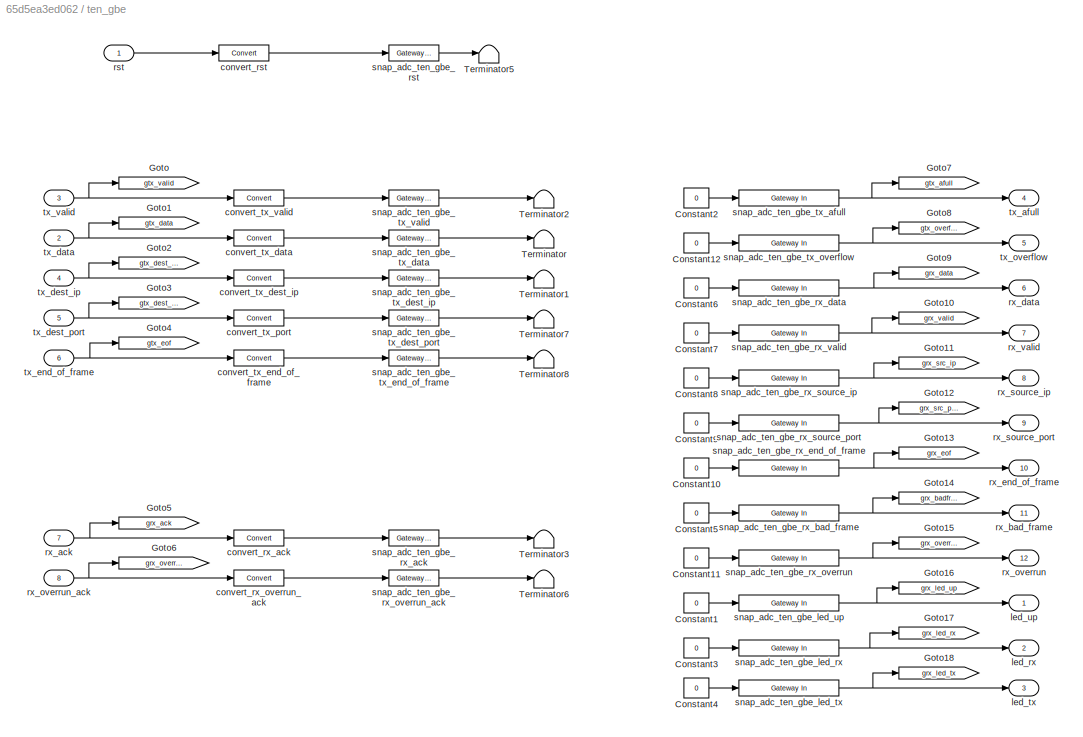
BLOCK [SubSystem] ten_gbe
  AncestorBlock = xps_library/IO/ten_gbe
  Ports = [8, 12]
  RequestExecContextInheritance = off
  Tag = xps:ten_gbe
BLOCK [Constant] ten_gbe/Constant1
  Value = 0
BLOCK [Constant] ten_gbe/Constant10
  Value = 0
BLOCK [Constant] ten_gbe/Constant11
  Value = 0
BLOCK [Constant] ten_gbe/Constant12
  Value = 0
BLOCK [Constant] ten_gbe/Constant2
  Value = 0
BLOCK [Constant] ten_gbe/Constant3
  Value = 0
BLOCK [Constant] ten_gbe/Constant4
  Value = 0
BLOCK [Constant] ten_gbe/Constant5
  Value = 0
BLOCK [Constant] ten_gbe/Constant6
  Value = 0
BLOCK [Constant] ten_gbe/Constant7
  Value = 0
BLOCK [Constant] ten_gbe/Constant8
  Value = 0
BLOCK [Constant] ten_gbe/Constant9
  Value = 0
BLOCK [Goto] ten_gbe/Goto
  GotoTag = gtx_valid
BLOCK [Goto] ten_gbe/Goto1
  GotoTag = gtx_data
BLOCK [Goto] ten_gbe/Goto10
  GotoTag = grx_valid
BLOCK [Goto] ten_gbe/Goto11
  GotoTag = grx_src_ip
BLOCK [Goto] ten_gbe/Goto12
  GotoTag = grx_src_port
BLOCK [Goto] ten_gbe/Goto13
  GotoTag = grx_eof
BLOCK [Goto] ten_gbe/Goto14
  GotoTag = grx_badframe
BLOCK [Goto] ten_gbe/Goto15
  GotoTag = grx_overrun
BLOCK [Goto] ten_gbe/Goto16
  GotoTag = grx_led_up
BLOCK [Goto] ten_gbe/Goto17
  GotoTag = grx_led_rx
BLOCK [Goto] ten_gbe/Goto18
  GotoTag = grx_led_tx
BLOCK [Goto] ten_gbe/Goto2
  GotoTag = gtx_dest_ip
BLOCK [Goto] ten_gbe/Goto3
  GotoTag = gtx_dest_port
BLOCK [Goto] ten_gbe/Goto4
  GotoTag = gtx_eof
BLOCK [Goto] ten_gbe/Goto5
  GotoTag = grx_ack
BLOCK [Goto] ten_gbe/Goto6
  GotoTag = grx_overrun_ack
BLOCK [Goto] ten_gbe/Goto7
  GotoTag = gtx_afull
BLOCK [Goto] ten_gbe/Goto8
  GotoTag = gtx_overflow
BLOCK [Goto] ten_gbe/Goto9
  GotoTag = grx_data
BLOCK [Terminator] ten_gbe/Terminator
BLOCK [Terminator] ten_gbe/Terminator1
BLOCK [Terminator] ten_gbe/Terminator2
BLOCK [Terminator] ten_gbe/Terminator3
BLOCK [Terminator] ten_gbe/Terminator5
BLOCK [Terminator] ten_gbe/Terminator6
BLOCK [Terminator] ten_gbe/Terminator7
BLOCK [Terminator] ten_gbe/Terminator8
BLOCK [Reference] ten_gbe/convert_rst  REF=xbsIndex_r4/Convert
  Ports = [1, 1]
  SourceBlock = xbsIndex_r4/Convert
  SourceType = Xilinx Type Converter Block
BLOCK [Reference] ten_gbe/convert_rx_ack  REF=xbsIndex_r4/Convert
  Ports = [1, 1]
  SourceBlock = xbsIndex_r4/Convert
  SourceType = Xilinx Type Converter Block
BLOCK [Reference] ten_gbe/convert_rx_overrun_ack  REF=xbsIndex_r4/Convert
  Ports = [1, 1]
  SourceBlock = xbsIndex_r4/Convert
  SourceType = Xilinx Type Converter Block
BLOCK [Reference] ten_gbe/convert_tx_data  REF=xbsIndex_r4/Convert
  Ports = [1, 1]
  SourceBlock = xbsIndex_r4/Convert
  SourceType = Xilinx Type Converter Block
BLOCK [Reference] ten_gbe/convert_tx_dest_ip  REF=xbsIndex_r4/Convert
  Ports = [1, 1]
  SourceBlock = xbsIndex_r4/Convert
  SourceType = Xilinx Type Converter Block
BLOCK [Reference] ten_gbe/convert_tx_end_of_frame  REF=xbsIndex_r4/Convert
  Ports = [1, 1]
  SourceBlock = xbsIndex_r4/Convert
  SourceType = Xilinx Type Converter Block
BLOCK [Reference] ten_gbe/convert_tx_port  REF=xbsIndex_r4/Convert
  Ports = [1, 1]
  SourceBlock = xbsIndex_r4/Convert
  SourceType = Xilinx Type Converter Block
BLOCK [Reference] ten_gbe/convert_tx_valid  REF=xbsIndex_r4/Convert
  Ports = [1, 1]
  SourceBlock = xbsIndex_r4/Convert
  SourceType = Xilinx Type Converter Block
BLOCK [Outport] ten_gbe/led_rx
  Port = 2
BLOCK [Outport] ten_gbe/led_tx
  Port = 3
BLOCK [Outport] ten_gbe/led_up
BLOCK [Inport] ten_gbe/rst
BLOCK [Inport] ten_gbe/rx_ack
  Port = 7
BLOCK [Outport] ten_gbe/rx_bad_frame
  Port = 11
BLOCK [Outport] ten_gbe/rx_data
  Port = 6
BLOCK [Outport] ten_gbe/rx_end_of_frame
  Port = 10
BLOCK [Outport] ten_gbe/rx_overrun
  Port = 12
BLOCK [Inport] ten_gbe/rx_overrun_ack
  Port = 8
BLOCK [Outport] ten_gbe/rx_source_ip
  Port = 8
BLOCK [Outport] ten_gbe/rx_source_port
  Port = 9
BLOCK [Outport] ten_gbe/rx_valid
  Port = 7
BLOCK [Reference] ten_gbe/snap_adc_ten_gbe_led_rx  REF=xbsIndex_r4/Gateway In
  Ports = [1, 1]
  SourceBlock = xbsIndex_r4/Gateway In
  SourceType = Xilinx Gateway In Block
BLOCK [Reference] ten_gbe/snap_adc_ten_gbe_led_tx  REF=xbsIndex_r4/Gateway In
  Ports = [1, 1]
  SourceBlock = xbsIndex_r4/Gateway In
  SourceType = Xilinx Gateway In Block
BLOCK [Reference] ten_gbe/snap_adc_ten_gbe_led_up  REF=xbsIndex_r4/Gateway In
  Ports = [1, 1]
  SourceBlock = xbsIndex_r4/Gateway In
  SourceType = Xilinx Gateway In Block
BLOCK [Reference] ten_gbe/snap_adc_ten_gbe_rst  REF=xbsIndex_r4/Gateway Out
  Ports = [1, 1]
  SourceBlock = xbsIndex_r4/Gateway Out
  SourceType = Xilinx Gateway Out Block
BLOCK [Reference] ten_gbe/snap_adc_ten_gbe_rx_ack  REF=xbsIndex_r4/Gateway Out
  Ports = [1, 1]
  SourceBlock = xbsIndex_r4/Gateway Out
  SourceType = Xilinx Gateway Out Block
BLOCK [Reference] ten_gbe/snap_adc_ten_gbe_rx_bad_frame  REF=xbsIndex_r4/Gateway In
  Ports = [1, 1]
  SourceBlock = xbsIndex_r4/Gateway In
  SourceType = Xilinx Gateway In Block
BLOCK [Reference] ten_gbe/snap_adc_ten_gbe_rx_data  REF=xbsIndex_r4/Gateway In
  Ports = [1, 1]
  SourceBlock = xbsIndex_r4/Gateway In
  SourceType = Xilinx Gateway In Block
BLOCK [Reference] ten_gbe/snap_adc_ten_gbe_rx_end_of_frame  REF=xbsIndex_r4/Gateway In
  Ports = [1, 1]
  SourceBlock = xbsIndex_r4/Gateway In
  SourceType = Xilinx Gateway In Block
BLOCK [Reference] ten_gbe/snap_adc_ten_gbe_rx_overrun  REF=xbsIndex_r4/Gateway In
  Ports = [1, 1]
  SourceBlock = xbsIndex_r4/Gateway In
  SourceType = Xilinx Gateway In Block
BLOCK [Reference] ten_gbe/snap_adc_ten_gbe_rx_overrun_ack  REF=xbsIndex_r4/Gateway Out
  Ports = [1, 1]
  SourceBlock = xbsIndex_r4/Gateway Out
  SourceType = Xilinx Gateway Out Block
BLOCK [Reference] ten_gbe/snap_adc_ten_gbe_rx_source_ip  REF=xbsIndex_r4/Gateway In
  Ports = [1, 1]
  SourceBlock = xbsIndex_r4/Gateway In
  SourceType = Xilinx Gateway In Block
BLOCK [Reference] ten_gbe/snap_adc_ten_gbe_rx_source_port  REF=xbsIndex_r4/Gateway In
  Ports = [1, 1]
  SourceBlock = xbsIndex_r4/Gateway In
  SourceType = Xilinx Gateway In Block
BLOCK [Reference] ten_gbe/snap_adc_ten_gbe_rx_valid  REF=xbsIndex_r4/Gateway In
  Ports = [1, 1]
  SourceBlock = xbsIndex_r4/Gateway In
  SourceType = Xilinx Gateway In Block
BLOCK [Reference] ten_gbe/snap_adc_ten_gbe_tx_afull  REF=xbsIndex_r4/Gateway In
  Ports = [1, 1]
  SourceBlock = xbsIndex_r4/Gateway In
  SourceType = Xilinx Gateway In Block
BLOCK [Reference] ten_gbe/snap_adc_ten_gbe_tx_data  REF=xbsIndex_r4/Gateway Out
  Ports = [1, 1]
  SourceBlock = xbsIndex_r4/Gateway Out
  SourceType = Xilinx Gateway Out Block
BLOCK [Reference] ten_gbe/snap_adc_ten_gbe_tx_dest_ip  REF=xbsIndex_r4/Gateway Out
  Ports = [1, 1]
  SourceBlock = xbsIndex_r4/Gateway Out
  SourceType = Xilinx Gateway Out Block
BLOCK [Reference] ten_gbe/snap_adc_ten_gbe_tx_dest_port  REF=xbsIndex_r4/Gateway Out
  Ports = [1, 1]
  SourceBlock = xbsIndex_r4/Gateway Out
  SourceType = Xilinx Gateway Out Block
BLOCK [Reference] ten_gbe/snap_adc_ten_gbe_tx_end_of_frame  REF=xbsIndex_r4/Gateway Out
  Ports = [1, 1]
  SourceBlock = xbsIndex_r4/Gateway Out
  SourceType = Xilinx Gateway Out Block
BLOCK [Reference] ten_gbe/snap_adc_ten_gbe_tx_overflow  REF=xbsIndex_r4/Gateway In
  Ports = [1, 1]
  SourceBlock = xbsIndex_r4/Gateway In
  SourceType = Xilinx Gateway In Block
BLOCK [Reference] ten_gbe/snap_adc_ten_gbe_tx_valid  REF=xbsIndex_r4/Gateway Out
  Ports = [1, 1]
  SourceBlock = xbsIndex_r4/Gateway Out
  SourceType = Xilinx Gateway Out Block
BLOCK [Outport] ten_gbe/tx_afull
  Port = 4
BLOCK [Inport] ten_gbe/tx_data
  Port = 2
BLOCK [Inport] ten_gbe/tx_dest_ip
  Port = 4
BLOCK [Inport] ten_gbe/tx_dest_port
  Port = 5
BLOCK [Inport] ten_gbe/tx_end_of_frame
  Port = 6
BLOCK [Outport] ten_gbe/tx_overflow
  Port = 5
BLOCK [Inport] ten_gbe/tx_valid
  Port = 3
ANNOTATION adc_snap: Delay start of capture
ANNOTATION adc_snap: Generate stop when in circular capture mode
ANNOTATION adc_snap: Number of bytes in buffer and done bit
ANNOTATION adc_snap: Number of valid data samples to skip after trigger before starting capture
ANNOTATION adc_snap: Offset in vector from first element captured, used during circular capture
ANNOTATION adc_snap: Value on vin aligned with first sample on din captured
ANNOTATION adc_snap: ctrl: bit0: Put a posedge here to enable a new capture. bit1: ignore external trigger and trigger immediately. bit2: ignore external write enable and capture on every FPGA clock. bit3: continuously capture data until we get an external stop command.
ANNOTATION adc_snap/add_gen: A total count of bytes written to BRAM since trig
ANNOTATION adc_snap/add_gen: Count of bytes in BRAM as well as done signal
ANNOTATION adc_snap/add_gen: Do one capture by default
ANNOTATION adc_snap/add_gen: Force MSbit of count to be '1' by negating busy as counter bit may be '0' or '1'
ANNOTATION adc_snap/add_gen: To storage
ANNOTATION adc_snap/add_gen: prevent one extra write to address 0
ANNOTATION adc_snap/basic_ctrl/dram_munge: 1st output same time as last input
ANNOTATION adc_snap/basic_ctrl/dram_munge: Buffer 4 input words when using DRAM then combine and output the first two, then second. Ensures that a full burst goes through every time so that status register records number of bytes fully in DRAM
ANNOTATION adc_snap/basic_ctrl/dram_munge: Choose DRAM data or standard. Constant input to muxes should ensure other path optimised away
ANNOTATION adc_snap/bram/calc_add: If reading/writing words smaller than 32 bits, change address so that addressing is big endian instead of little, otherwise pass through
ANNOTATION adc_snap/bram/calc_add: Use behavioural HDL so that gets optimised to minimum logic
LINE Constant1:1 -> ten_gbe:1
LINE Constant2:1 -> ten_gbe:2
LINE Constant3:1 -> ten_gbe:3
LINE Constant4:1 -> ten_gbe:4
LINE Constant5:1 -> ten_gbe:5
LINE Constant6:1 -> ten_gbe:6
LINE Constant7:1 -> led_ctrl:1
LINE Constant8:1 -> adc_trig:1
LINE Constant:1 -> adc_snap:2
LINE From1:1 -> bus_create:2
LINE From2:1 -> bus_create:3
LINE From3:1 -> bus_create:4
LINE From4:1 -> bus_create:5
LINE From5:1 -> bus_create:6
LINE From6:1 -> bus_create:7
LINE From7:1 -> bus_create:8
LINE From:1 -> bus_create:1
NET Random Number:1 -> snap_adc:1, snap_adc:10, snap_adc:11, snap_adc:12, snap_adc:2, snap_adc:3, snap_adc:4, snap_adc:5, snap_adc:6, snap_adc:7, snap_adc:8, snap_adc:9
LINE Slice1:1 -> led:1
LINE Slice:1 -> adc_snap:3
LINE adc_trig:1 -> Slice:1
LINE bus_create:1 -> adc_snap:1
LINE led:1 -> Terminator15:1
LINE led_ctrl:1 -> Slice1:1
LINE snap_adc:1 -> Goto:1
LINE snap_adc:10 -> Terminator1:1
LINE snap_adc:11 -> Terminator2:1
LINE snap_adc:12 -> Terminator3:1
LINE snap_adc:2 -> Goto1:1
LINE snap_adc:3 -> Goto2:1
LINE snap_adc:4 -> Goto3:1
LINE snap_adc:5 -> Goto4:1
LINE snap_adc:6 -> Goto5:1
LINE snap_adc:7 -> Goto6:1
LINE snap_adc:8 -> Goto7:1
LINE snap_adc:9 -> Terminator:1
LINE ten_gbe:1 -> Terminator4:1
LINE ten_gbe:10 -> Terminator7:1
LINE ten_gbe:11 -> Terminator6:1
NET ten_gbe:12 -> Terminator5:1, ten_gbe:8
LINE ten_gbe:2 -> Terminator14:1
LINE ten_gbe:3 -> Terminator13:1
LINE ten_gbe:4 -> Terminator12:1
LINE ten_gbe:5 -> Terminator11:1
LINE ten_gbe:6 -> Terminator10:1
LINE ten_gbe:7 -> ten_gbe:7
LINE ten_gbe:8 -> Terminator9:1
LINE ten_gbe:9 -> Terminator8:1
note: NET lines group one-source signal fan-out (src -> all destinations, sorted); 1:1 wires keep LINE
